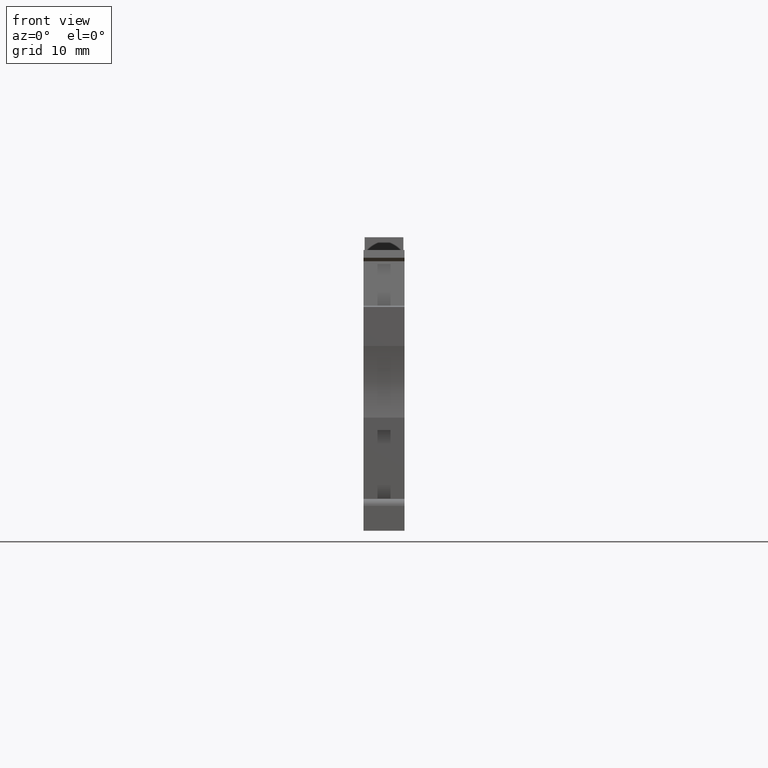
[diagram: clean part render]
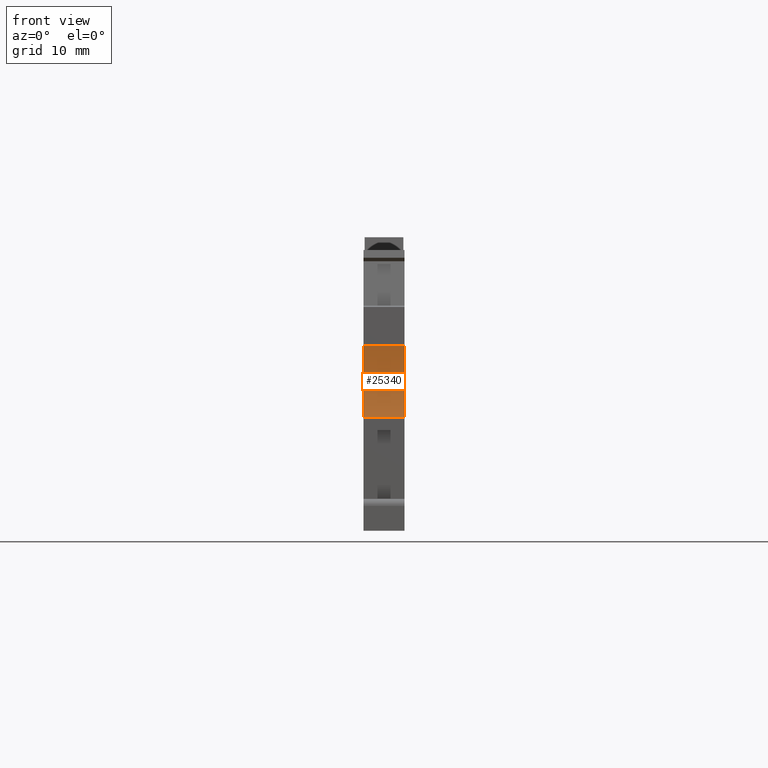
[diagram: same view with one face highlighted and labeled with its STEP entity id]
A machine part, front view. The second image highlights one B-rep face of the part: STEP entity #25340.
In plain terms, the highlighted cylindrical surface (partial cylindrical patch) has radius 15 mm, axis along (1, 0, 0).
Its self-contained STEP definition (entity closure, byte-faithful):
#60=CARTESIAN_POINT('',(-22.3678327782688,-21.2000000001795,
53.6700000000004));
#70=DIRECTION('',(1.09240999716883E-11,6.46588825410369E-17,1.));
#80=VECTOR('',#70,1.);
#90=LINE('',#60,#80);
#100=CARTESIAN_POINT('',(-22.3678327783245,-21.2000000001803,
48.5199999999973));
#110=VERTEX_POINT('',#100);
#120=CARTESIAN_POINT('',(-22.3678327783245,-21.2000000001803,
53.6699999998948));
#130=VERTEX_POINT('',#120);
#140=EDGE_CURVE('',#110,#130,#90,.T.);
#11410=CARTESIAN_POINT('',(-22.367832778299,-30.1999999999206,
53.6699999997342));
#11420=VERTEX_POINT('',#11410);
#11450=CARTESIAN_POINT('',(-36.6769207995788,-25.700000000002,
53.6699999998905));
#11460=DIRECTION('',(1.09240999716883E-11,6.46588825410369E-17,1.));
#11470=DIRECTION('',(1.,-1.38777878078145E-16,-1.09240999716883E-11));
#11480=AXIS2_PLACEMENT_3D('',#11450,#11460,#11470);
#11490=CIRCLE('',#11480,15.);
#11500=EDGE_CURVE('',#11420,#130,#11490,.T.);
#18850=CARTESIAN_POINT('',(-36.6769207996351,-25.700000000002,
48.5199999999973));
#18860=DIRECTION('',(1.09240999716883E-11,6.46588825410369E-17,1.));
#18870=DIRECTION('',(1.,-1.38777878078145E-16,-1.09240999716883E-11));
#18880=AXIS2_PLACEMENT_3D('',#18850,#18860,#18870);
#18890=CIRCLE('',#18880,15.);
#18900=CARTESIAN_POINT('',(-22.3678327783502,-30.1999999999045,
48.519999999841));
#18910=VERTEX_POINT('',#18900);
#18920=EDGE_CURVE('',#18910,#110,#18890,.T.);
#25180=CARTESIAN_POINT('',(-36.6769207995788,-25.700000000002,
53.6700000001567));
#25190=DIRECTION('',(1.09240999716883E-11,6.46588825410369E-17,1.));
#25200=DIRECTION('',(1.,-1.38777878078145E-16,-1.09241168704204E-11));
#25210=AXIS2_PLACEMENT_3D('',#25180,#25190,#25200);
#25220=CYLINDRICAL_SURFACE('',#25210,15.);
#25230=CARTESIAN_POINT('',(-22.3678327782689,-30.1999999998248,
53.6700000000004));
#25240=DIRECTION('',(1.09240999716883E-11,6.46588825410369E-17,1.));
#25250=VECTOR('',#25240,1.);
#25260=LINE('',#25230,#25250);
#25270=EDGE_CURVE('',#18910,#11420,#25260,.T.);
#25280=ORIENTED_EDGE('',*,*,#25270,.T.);
#25290=ORIENTED_EDGE('',*,*,#18920,.F.);
#25300=ORIENTED_EDGE('',*,*,#140,.F.);
#25310=ORIENTED_EDGE('',*,*,#11500,.T.);
#25320=EDGE_LOOP('',(#25310,#25300,#25290,#25280));
#25330=FACE_OUTER_BOUND('',#25320,.T.);
#25340=ADVANCED_FACE('',(#25330),#25220,.F.);